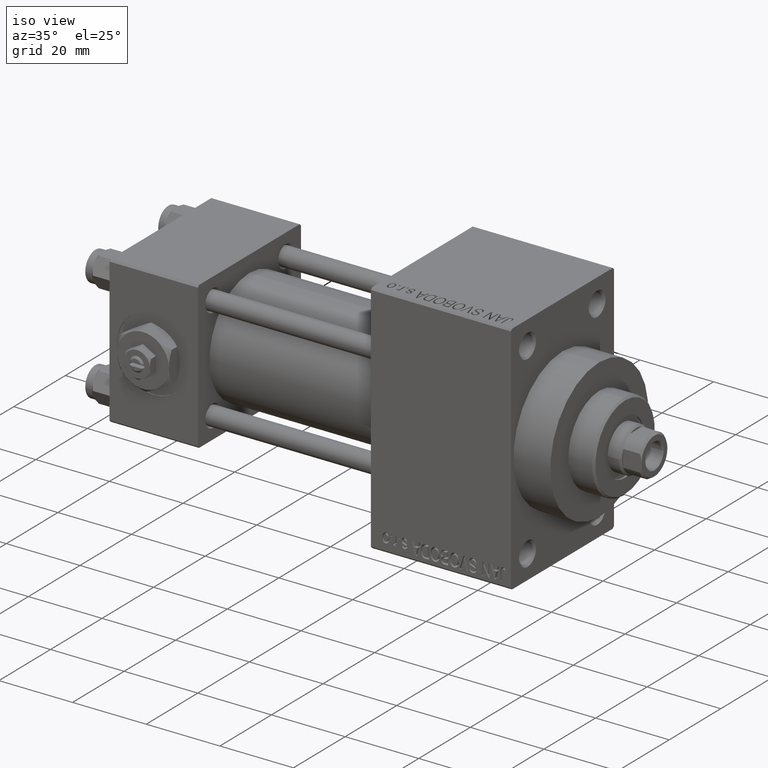
[diagram: clean part render]
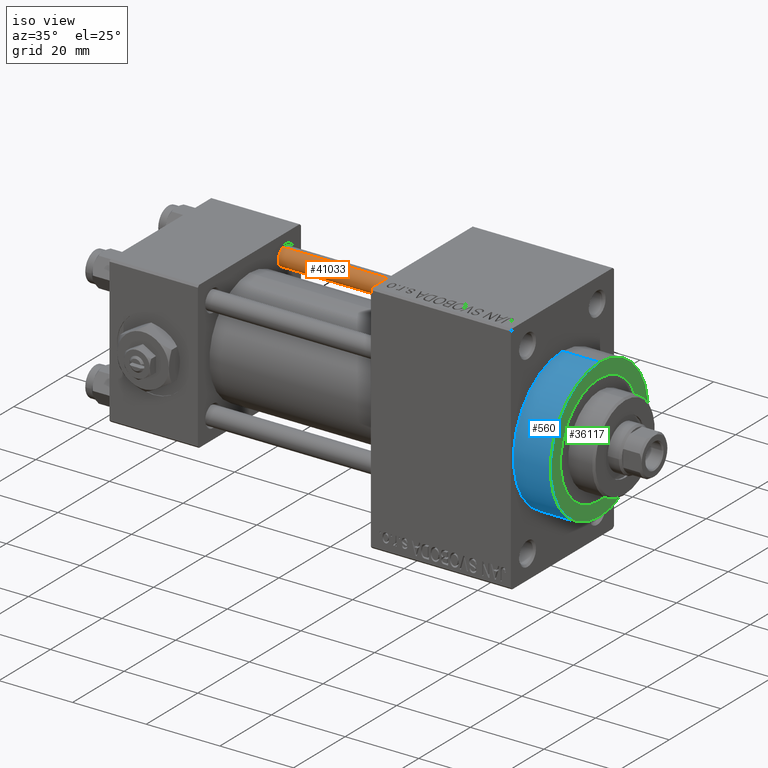
[diagram: same view with three faces highlighted in distinct colors, each labeled with its STEP entity id]
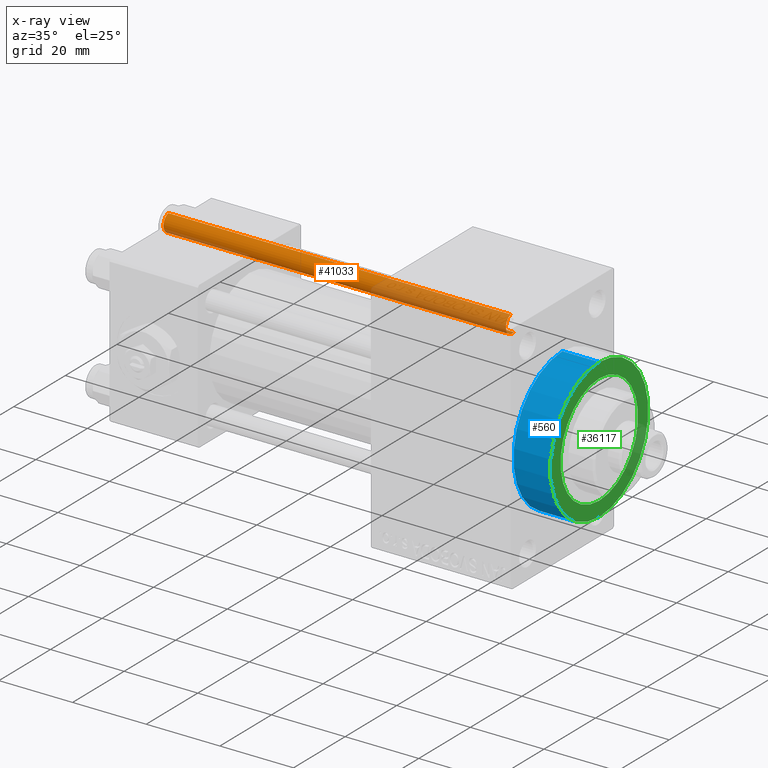
[diagram: x-ray of the same camera — body ghosted, the three highlighted faces saturated]
A machine part, iso view with three faces highlighted in distinct colors.
The next image is the same camera in x-ray (body ghosted, the three faces saturated) — at least one of them is partly hidden behind the body in this view.
Their STEP definitions:

[orange] entity #41033 — the highlighted cylindrical surface (edge-blend (fillet) strip) has radius 2.5 mm, axis along (-1, -0, 0).
#947 = EDGE_CURVE ( 'NONE', #46684, #26453, #40950, .T. ) ;
#1333 = CARTESIAN_POINT ( 'NONE',  ( 2.500000000000000000, 3.061616997868383141E-16, 93.50000000000001421 ) ) ;
#3341 = CIRCLE ( 'NONE', #43518, 2.500000000000000000 ) ;
#6932 = EDGE_CURVE ( 'NONE', #35697, #26453, #19894, .T. ) ;
#8108 = ORIENTED_EDGE ( 'NONE', *, *, #42156, .T. ) ;
#10225 = DIRECTION ( 'NONE',  ( 0.000000000000000000, 0.000000000000000000, -1.000000000000000000 ) ) ;
#11759 = CARTESIAN_POINT ( 'NONE',  ( -2.500000000000000000, 0.000000000000000000, 94.00000000000000000 ) ) ;
#12248 = DIRECTION ( 'NONE',  ( -0.000000000000000000, -0.000000000000000000, -1.000000000000000000 ) ) ;
#12409 = DIRECTION ( 'NONE',  ( -0.000000000000000000, -0.000000000000000000, -1.000000000000000000 ) ) ;
#12643 = FACE_OUTER_BOUND ( 'NONE', #30504, .T. ) ;
#12721 = AXIS2_PLACEMENT_3D ( 'NONE', #24225, #12409, #20535 ) ;
#14265 = ORIENTED_EDGE ( 'NONE', *, *, #18836, .T. ) ;
#18441 = DIRECTION ( 'NONE',  ( -0.000000000000000000, -0.000000000000000000, -1.000000000000000000 ) ) ;
#18690 = CARTESIAN_POINT ( 'NONE',  ( 0.000000000000000000, 0.000000000000000000, 0.5000000000000004441 ) ) ;
#18836 = EDGE_CURVE ( 'NONE', #44239, #46684, #26319, .T. ) ;
#19085 = CARTESIAN_POINT ( 'NONE',  ( 2.500000000000000000, 3.061616997868383141E-16, 0.5000000000000004441 ) ) ;
#19186 = DIRECTION ( 'NONE',  ( 1.000000000000000000, 0.000000000000000000, 0.000000000000000000 ) ) ;
#19894 = LINE ( 'NONE', #42593, #24445 ) ;
#20535 = DIRECTION ( 'NONE',  ( -1.000000000000000000, 0.000000000000000000, 0.000000000000000000 ) ) ;
#21639 = ORIENTED_EDGE ( 'NONE', *, *, #6932, .F. ) ;
#24225 = CARTESIAN_POINT ( 'NONE',  ( 0.000000000000000000, 0.000000000000000000, 94.00000000000000000 ) ) ;
#24445 = VECTOR ( 'NONE', #12248, 1000.000000000000000 ) ;
#26319 = LINE ( 'NONE', #11759, #39517 ) ;
#26344 = CARTESIAN_POINT ( 'NONE',  ( -2.500000000000000000, 0.000000000000000000, 0.5000000000000004441 ) ) ;
#26453 = VERTEX_POINT ( 'NONE', #19085 ) ;
#27439 = CYLINDRICAL_SURFACE ( 'NONE', #12721, 2.500000000000000000 ) ;
#27512 = CARTESIAN_POINT ( 'NONE',  ( -2.500000000000000000, 0.000000000000000000, 93.50000000000001421 ) ) ;
#30504 = EDGE_LOOP ( 'NONE', ( #21639, #8108, #14265, #32933 ) ) ;
#32933 = ORIENTED_EDGE ( 'NONE', *, *, #947, .T. ) ;
#33051 = AXIS2_PLACEMENT_3D ( 'NONE', #18690, #41149, #19186 ) ;
#35697 = VERTEX_POINT ( 'NONE', #1333 ) ;
#39517 = VECTOR ( 'NONE', #18441, 1000.000000000000000 ) ;
#39846 = CARTESIAN_POINT ( 'NONE',  ( 0.000000000000000000, 0.000000000000000000, 93.50000000000001421 ) ) ;
#40950 = CIRCLE ( 'NONE', #33051, 2.500000000000000000 ) ;
#41033 = ADVANCED_FACE ( 'NONE', ( #12643 ), #27439, .T. ) ;
#41149 = DIRECTION ( 'NONE',  ( -0.000000000000000000, -0.000000000000000000, 1.000000000000000000 ) ) ;
#42156 = EDGE_CURVE ( 'NONE', #35697, #44239, #3341, .T. ) ;
#42593 = CARTESIAN_POINT ( 'NONE',  ( 2.500000000000000000, 3.061616997868383141E-16, 94.00000000000000000 ) ) ;
#43518 = AXIS2_PLACEMENT_3D ( 'NONE', #39846, #10225, #46758 ) ;
#44239 = VERTEX_POINT ( 'NONE', #27512 ) ;
#46684 = VERTEX_POINT ( 'NONE', #26344 ) ;
#46758 = DIRECTION ( 'NONE',  ( 1.000000000000000000, 0.000000000000000000, 0.000000000000000000 ) ) ;

[blue] entity #560 — the highlighted cylindrical surface (partial cylindrical patch) has radius 19 mm, axis along (-1, -0, -0).
#560 = ADVANCED_FACE ( 'NONE', ( #6197 ), #43712, .T. ) ;
#2514 = DIRECTION ( 'NONE',  ( 0.000000000000000000, 0.000000000000000000, 1.000000000000000000 ) ) ;
#6197 = FACE_OUTER_BOUND ( 'NONE', #21994, .T. ) ;
#6699 = DIRECTION ( 'NONE',  ( -1.000000000000000000, -0.000000000000000000, -0.000000000000000000 ) ) ;
#7178 = VERTEX_POINT ( 'NONE', #46329 ) ;
#7744 = DIRECTION ( 'NONE',  ( 0.000000000000000000, 0.000000000000000000, -1.000000000000000000 ) ) ;
#8241 = CARTESIAN_POINT ( 'NONE',  ( 119.0000000000000142, 0.000000000000000000, 0.000000000000000000 ) ) ;
#8926 = VECTOR ( 'NONE', #33173, 1000.000000000000000 ) ;
#11681 = CARTESIAN_POINT ( 'NONE',  ( 109.0000000000000142, 0.000000000000000000, 0.000000000000000000 ) ) ;
#14279 = CARTESIAN_POINT ( 'NONE',  ( 119.0000000000000142, 2.326828918379970970E-15, -19.00000000000000000 ) ) ;
#14426 = CARTESIAN_POINT ( 'NONE',  ( 119.0000000000000142, 0.000000000000000000, 19.00000000000000000 ) ) ;
#14810 = ORIENTED_EDGE ( 'NONE', *, *, #27828, .F. ) ;
#15747 = ORIENTED_EDGE ( 'NONE', *, *, #35613, .T. ) ;
#15988 = AXIS2_PLACEMENT_3D ( 'NONE', #8241, #45721, #26230 ) ;
#16025 = VECTOR ( 'NONE', #29331, 1000.000000000000000 ) ;
#19426 = CIRCLE ( 'NONE', #46999, 19.00000000000000000 ) ;
#20355 = CARTESIAN_POINT ( 'NONE',  ( 109.0000000000000142, 2.326828918379970970E-15, -19.00000000000000000 ) ) ;
#21216 = AXIS2_PLACEMENT_3D ( 'NONE', #21717, #6699, #2514 ) ;
#21717 = CARTESIAN_POINT ( 'NONE',  ( 119.0000000000000142, 0.000000000000000000, 0.000000000000000000 ) ) ;
#21994 = EDGE_LOOP ( 'NONE', ( #14810, #43437, #33371, #15747 ) ) ;
#22781 = CARTESIAN_POINT ( 'NONE',  ( 109.0000000000000142, 0.000000000000000000, 19.00000000000000000 ) ) ;
#23086 = CIRCLE ( 'NONE', #15988, 19.00000000000000000 ) ;
#23509 = EDGE_CURVE ( 'NONE', #7178, #43145, #25274, .T. ) ;
#25274 = LINE ( 'NONE', #14426, #8926 ) ;
#26230 = DIRECTION ( 'NONE',  ( 0.000000000000000000, 0.000000000000000000, -1.000000000000000000 ) ) ;
#26485 = EDGE_CURVE ( 'NONE', #7178, #27232, #23086, .T. ) ;
#27232 = VERTEX_POINT ( 'NONE', #33633 ) ;
#27828 = EDGE_CURVE ( 'NONE', #27232, #29320, #48066, .T. ) ;
#29320 = VERTEX_POINT ( 'NONE', #20355 ) ;
#29331 = DIRECTION ( 'NONE',  ( -1.000000000000000000, -0.000000000000000000, -0.000000000000000000 ) ) ;
#29694 = DIRECTION ( 'NONE',  ( 1.000000000000000000, 0.000000000000000000, 0.000000000000000000 ) ) ;
#33173 = DIRECTION ( 'NONE',  ( -1.000000000000000000, -0.000000000000000000, -0.000000000000000000 ) ) ;
#33371 = ORIENTED_EDGE ( 'NONE', *, *, #23509, .T. ) ;
#33633 = CARTESIAN_POINT ( 'NONE',  ( 119.0000000000000142, 2.326828918379970970E-15, -19.00000000000000000 ) ) ;
#35613 = EDGE_CURVE ( 'NONE', #43145, #29320, #19426, .T. ) ;
#43145 = VERTEX_POINT ( 'NONE', #22781 ) ;
#43437 = ORIENTED_EDGE ( 'NONE', *, *, #26485, .F. ) ;
#43712 = CYLINDRICAL_SURFACE ( 'NONE', #21216, 19.00000000000000000 ) ;
#45721 = DIRECTION ( 'NONE',  ( 1.000000000000000000, 0.000000000000000000, 0.000000000000000000 ) ) ;
#46329 = CARTESIAN_POINT ( 'NONE',  ( 119.0000000000000142, 0.000000000000000000, 19.00000000000000000 ) ) ;
#46999 = AXIS2_PLACEMENT_3D ( 'NONE', #11681, #29694, #7744 ) ;
#48066 = LINE ( 'NONE', #14279, #16025 ) ;

[green] entity #36117 — the highlighted planar face has unit normal (1, 0, 0).
#1200 = EDGE_LOOP ( 'NONE', ( #13581, #18975 ) ) ;
#2356 = CIRCLE ( 'NONE', #30683, 15.00000000000000000 ) ;
#4313 = EDGE_CURVE ( 'NONE', #39875, #14743, #2356, .T. ) ;
#5306 = CARTESIAN_POINT ( 'NONE',  ( 119.0000000000000142, 0.000000000000000000, -15.00000000000000000 ) ) ;
#7178 = VERTEX_POINT ( 'NONE', #46329 ) ;
#7510 = EDGE_CURVE ( 'NONE', #14743, #39875, #18963, .T. ) ;
#8241 = CARTESIAN_POINT ( 'NONE',  ( 119.0000000000000142, 0.000000000000000000, 0.000000000000000000 ) ) ;
#10101 = CARTESIAN_POINT ( 'NONE',  ( 119.0000000000000142, 0.000000000000000000, 0.000000000000000000 ) ) ;
#10525 = CIRCLE ( 'NONE', #37300, 19.00000000000000000 ) ;
#13545 = DIRECTION ( 'NONE',  ( 0.000000000000000000, 0.000000000000000000, -1.000000000000000000 ) ) ;
#13581 = ORIENTED_EDGE ( 'NONE', *, *, #26485, .T. ) ;
#14028 = DIRECTION ( 'NONE',  ( 1.000000000000000000, 0.000000000000000000, 0.000000000000000000 ) ) ;
#14743 = VERTEX_POINT ( 'NONE', #5306 ) ;
#15939 = DIRECTION ( 'NONE',  ( 1.000000000000000000, 0.000000000000000000, 0.000000000000000000 ) ) ;
#15988 = AXIS2_PLACEMENT_3D ( 'NONE', #8241, #45721, #26230 ) ;
#17249 = CARTESIAN_POINT ( 'NONE',  ( 119.0000000000000142, 0.000000000000000000, 0.000000000000000000 ) ) ;
#18963 = CIRCLE ( 'NONE', #29202, 15.00000000000000000 ) ;
#18975 = ORIENTED_EDGE ( 'NONE', *, *, #27705, .T. ) ;
#19631 = DIRECTION ( 'NONE',  ( 0.000000000000000000, 0.000000000000000000, -1.000000000000000000 ) ) ;
#20482 = FACE_BOUND ( 'NONE', #36591, .T. ) ;
#20585 = CARTESIAN_POINT ( 'NONE',  ( 119.0000000000000142, 1.836970198721029589E-15, 15.00000000000000000 ) ) ;
#21201 = CARTESIAN_POINT ( 'NONE',  ( 119.0000000000000142, 0.000000000000000000, 0.000000000000000000 ) ) ;
#21235 = ORIENTED_EDGE ( 'NONE', *, *, #7510, .F. ) ;
#23086 = CIRCLE ( 'NONE', #15988, 19.00000000000000000 ) ;
#24903 = PLANE ( 'NONE',  #24975 ) ;
#24975 = AXIS2_PLACEMENT_3D ( 'NONE', #21201, #32073, #35536 ) ;
#26230 = DIRECTION ( 'NONE',  ( 0.000000000000000000, 0.000000000000000000, -1.000000000000000000 ) ) ;
#26485 = EDGE_CURVE ( 'NONE', #7178, #27232, #23086, .T. ) ;
#27232 = VERTEX_POINT ( 'NONE', #33633 ) ;
#27505 = CARTESIAN_POINT ( 'NONE',  ( 119.0000000000000142, 0.000000000000000000, 0.000000000000000000 ) ) ;
#27705 = EDGE_CURVE ( 'NONE', #27232, #7178, #10525, .T. ) ;
#28124 = FACE_OUTER_BOUND ( 'NONE', #1200, .T. ) ;
#29202 = AXIS2_PLACEMENT_3D ( 'NONE', #27505, #15939, #19631 ) ;
#30683 = AXIS2_PLACEMENT_3D ( 'NONE', #10101, #32063, #40457 ) ;
#32063 = DIRECTION ( 'NONE',  ( 1.000000000000000000, 0.000000000000000000, 0.000000000000000000 ) ) ;
#32073 = DIRECTION ( 'NONE',  ( 1.000000000000000000, 0.000000000000000000, 0.000000000000000000 ) ) ;
#33633 = CARTESIAN_POINT ( 'NONE',  ( 119.0000000000000142, 2.326828918379970970E-15, -19.00000000000000000 ) ) ;
#35536 = DIRECTION ( 'NONE',  ( 0.000000000000000000, 0.000000000000000000, -1.000000000000000000 ) ) ;
#36117 = ADVANCED_FACE ( 'NONE', ( #20482, #28124 ), #24903, .T. ) ;
#36591 = EDGE_LOOP ( 'NONE', ( #21235, #42852 ) ) ;
#37300 = AXIS2_PLACEMENT_3D ( 'NONE', #17249, #14028, #13545 ) ;
#39875 = VERTEX_POINT ( 'NONE', #20585 ) ;
#40457 = DIRECTION ( 'NONE',  ( 0.000000000000000000, 0.000000000000000000, -1.000000000000000000 ) ) ;
#42852 = ORIENTED_EDGE ( 'NONE', *, *, #4313, .F. ) ;
#45721 = DIRECTION ( 'NONE',  ( 1.000000000000000000, 0.000000000000000000, 0.000000000000000000 ) ) ;
#46329 = CARTESIAN_POINT ( 'NONE',  ( 119.0000000000000142, 0.000000000000000000, 19.00000000000000000 ) ) ;